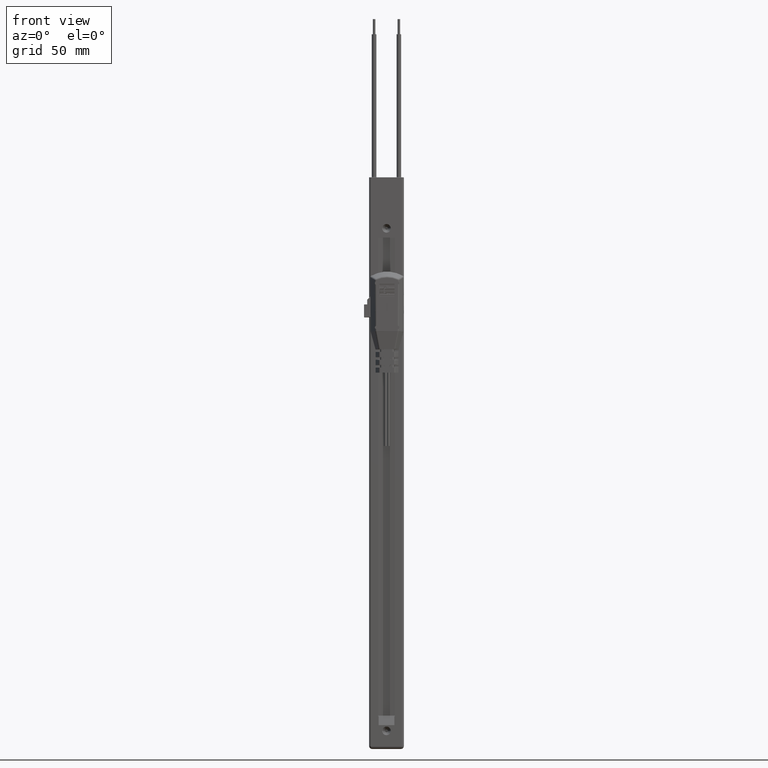
[diagram: clean part render]
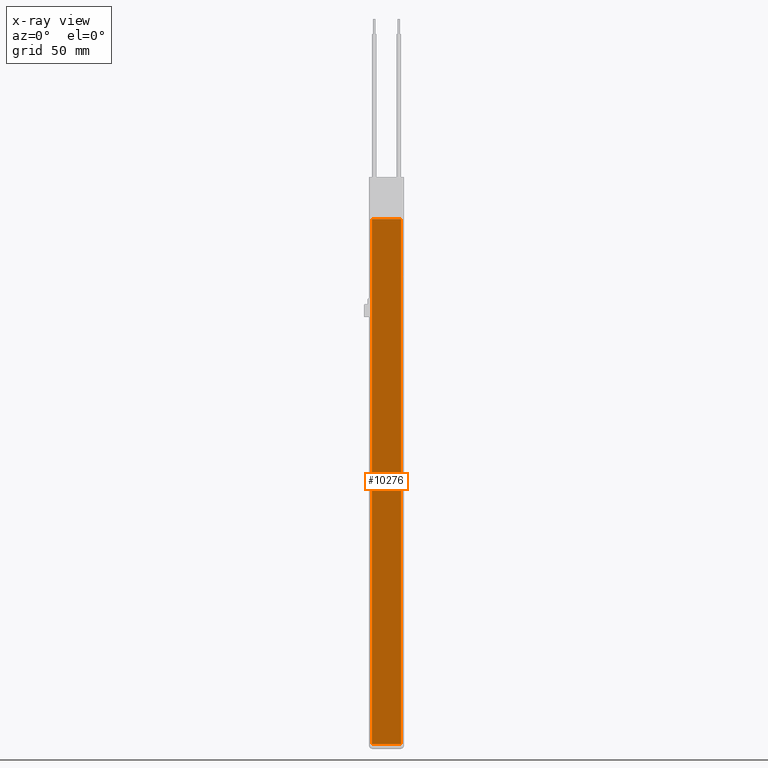
[diagram: x-ray — body ghosted, one internal face saturated and labeled with its STEP entity id]
A machine part, front view, then the same camera in x-ray: the body is ghosted and one INTERNAL B-rep face — a face not visible from any outside direction — is saturated and labeled: STEP entity #10276.
In plain terms, the highlighted planar face has unit normal (0, -1, 0).
Its self-contained STEP definition (entity closure, byte-faithful):
#490 = EDGE_CURVE ( 'NONE', #6088, #7494, #9918, .T. ) ;
#596 = EDGE_CURVE ( 'NONE', #6088, #5513, #11554, .T. ) ;
#881 = VERTEX_POINT ( 'NONE', #13510 ) ;
#1285 = EDGE_CURVE ( 'NONE', #7494, #881, #7887, .T. ) ;
#1492 = DIRECTION ( 'NONE',  ( 0.000000000000000000, 0.000000000000000000, 1.000000000000000000 ) ) ;
#3486 = EDGE_CURVE ( 'NONE', #5513, #881, #13514, .T. ) ;
#3705 = DIRECTION ( 'NONE',  ( 1.000000000000000000, -0.000000000000000000, -0.000000000000000000 ) ) ;
#5513 = VERTEX_POINT ( 'NONE', #5655 ) ;
#5655 = CARTESIAN_POINT ( 'NONE',  ( 7.700000000000001066, 2.899201321957826070E-16, 137.7500000000000000 ) ) ;
#5796 = CARTESIAN_POINT ( 'NONE',  ( 7.700000000000001066, 2.899201321957826070E-16, 137.7500000000000000 ) ) ;
#6088 = VERTEX_POINT ( 'NONE', #7947 ) ;
#6243 = DIRECTION ( 'NONE',  ( -0.000000000000000000, -0.000000000000000000, -1.000000000000000000 ) ) ;
#6749 = CARTESIAN_POINT ( 'NONE',  ( -7.700000000000001066, 2.899201321957826070E-16, 137.7500000000000000 ) ) ;
#6951 = ORIENTED_EDGE ( 'NONE', *, *, #596, .F. ) ;
#7494 = VERTEX_POINT ( 'NONE', #8590 ) ;
#7495 = CARTESIAN_POINT ( 'NONE',  ( 7.700000000000001066, 2.899201321957826070E-16, -137.7500000000000000 ) ) ;
#7708 = DIRECTION ( 'NONE',  ( -0.000000000000000000, -0.000000000000000000, -1.000000000000000000 ) ) ;
#7878 = VECTOR ( 'NONE', #6243, 1000.000000000000000 ) ;
#7887 = LINE ( 'NONE', #7495, #11365 ) ;
#7936 = AXIS2_PLACEMENT_3D ( 'NONE', #5796, #9937, #1492 ) ;
#7947 = CARTESIAN_POINT ( 'NONE',  ( -7.700000000000001066, 2.899201321957826070E-16, 137.7500000000000000 ) ) ;
#8590 = CARTESIAN_POINT ( 'NONE',  ( -7.700000000000001066, 2.899201321957826070E-16, -137.7500000000000000 ) ) ;
#8591 = DIRECTION ( 'NONE',  ( 1.000000000000000000, -0.000000000000000000, -0.000000000000000000 ) ) ;
#8879 = PLANE ( 'NONE',  #7936 ) ;
#8933 = VECTOR ( 'NONE', #3705, 1000.000000000000000 ) ;
#9918 = LINE ( 'NONE', #6749, #13228 ) ;
#9937 = DIRECTION ( 'NONE',  ( 0.000000000000000000, 1.000000000000000000, -0.000000000000000000 ) ) ;
#10168 = CARTESIAN_POINT ( 'NONE',  ( 7.700000000000001066, 2.899201321957826070E-16, 137.7500000000000000 ) ) ;
#10276 = ADVANCED_FACE ( 'NONE', ( #12015 ), #8879, .F. ) ;
#10344 = ORIENTED_EDGE ( 'NONE', *, *, #490, .T. ) ;
#10534 = ORIENTED_EDGE ( 'NONE', *, *, #1285, .T. ) ;
#11365 = VECTOR ( 'NONE', #8591, 1000.000000000000000 ) ;
#11554 = LINE ( 'NONE', #10168, #8933 ) ;
#12015 = FACE_OUTER_BOUND ( 'NONE', #13061, .T. ) ;
#12630 = CARTESIAN_POINT ( 'NONE',  ( 7.700000000000001066, 2.899201321957826070E-16, 137.7500000000000000 ) ) ;
#13049 = ORIENTED_EDGE ( 'NONE', *, *, #3486, .F. ) ;
#13061 = EDGE_LOOP ( 'NONE', ( #10534, #13049, #6951, #10344 ) ) ;
#13228 = VECTOR ( 'NONE', #7708, 1000.000000000000000 ) ;
#13510 = CARTESIAN_POINT ( 'NONE',  ( 7.700000000000001066, 2.899201321957826070E-16, -137.7500000000000000 ) ) ;
#13514 = LINE ( 'NONE', #12630, #7878 ) ;